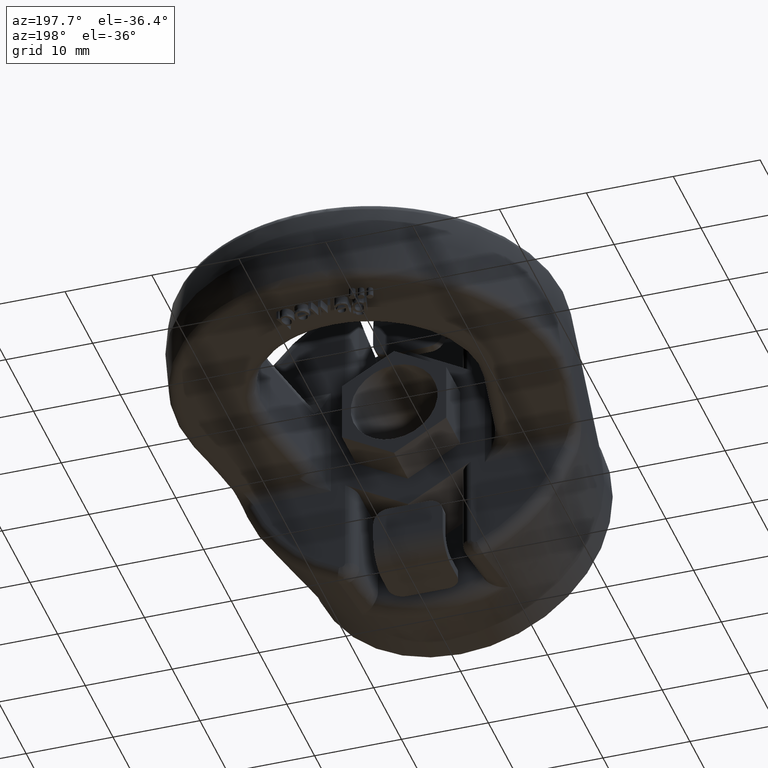
[diagram: clean part render]
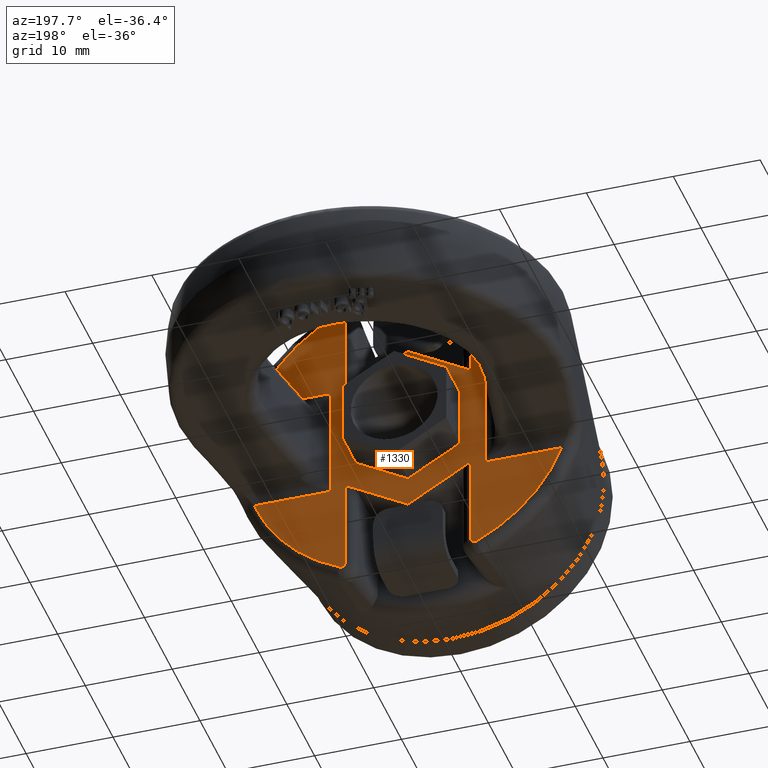
[diagram: same view with one face highlighted and labeled with its STEP entity id]
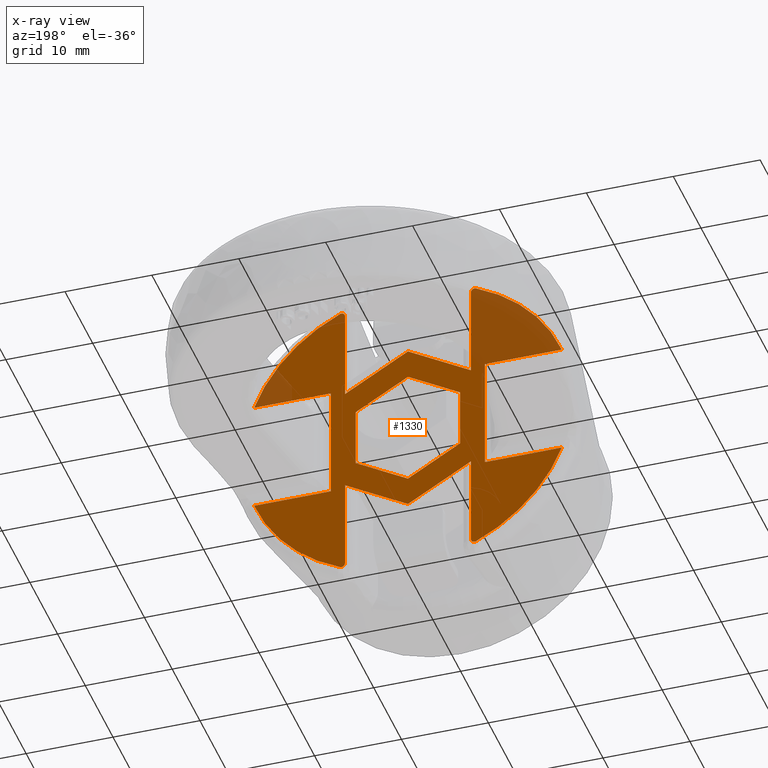
[diagram: x-ray of the same camera — body ghosted, the highlighted face saturated]
A machine part, auxiliary view. The second image highlights one B-rep face of the part: STEP entity #1330.
The next image is the same camera in x-ray: the body ghosted, the highlighted face saturated — about 19% of this face is hidden behind the body in this view.
In plain terms, the highlighted planar face has unit normal (0, 1, 0).
Its self-contained STEP definition (entity closure, byte-faithful):
#1330=ADVANCED_FACE('',(#1781,#1782),#1567,.T.);
#1567=PLANE('',#5133);
#1695=CIRCLE('',#5129,18.9143135849995);
#1696=CIRCLE('',#5130,18.9143135849995);
#1697=CIRCLE('',#5131,18.9143135849995);
#1698=CIRCLE('',#5132,18.9143135849995);
#1781=FACE_BOUND('',#1844,.T.);
#1782=FACE_BOUND('',#1845,.T.);
#1844=EDGE_LOOP('',(#2799,#2800,#2801,#2802,#2803,#2804,#2805,#2806,#2807,
#2808,#2809,#2810,#2811,#2812,#2813,#2814,#2815,#2816,#2817,#2818,#2819,
#2820));
#1845=EDGE_LOOP('',(#2821,#2822,#2823,#2824,#2825,#2826));
#2142=LINE('',#6736,#2412);
#2143=LINE('',#6739,#2413);
#2144=LINE('',#6763,#2414);
#2145=LINE('',#6765,#2415);
#2146=LINE('',#6767,#2416);
#2147=LINE('',#6769,#2417);
#2148=LINE('',#6793,#2418);
#2149=LINE('',#6795,#2419);
#2150=LINE('',#6797,#2420);
#2151=LINE('',#6821,#2421);
#2152=LINE('',#6823,#2422);
#2153=LINE('',#6825,#2423);
#2154=LINE('',#6827,#2424);
#2155=LINE('',#6851,#2425);
#2156=LINE('',#6852,#2426);
#2157=LINE('',#6855,#2427);
#2158=LINE('',#6857,#2428);
#2159=LINE('',#6859,#2429);
#2160=LINE('',#6861,#2430);
#2161=LINE('',#6863,#2431);
#2412=VECTOR('',#5471,1.);
#2413=VECTOR('',#5472,1.);
#2414=VECTOR('',#5475,1.);
#2415=VECTOR('',#5476,1.);
#2416=VECTOR('',#5477,1.);
#2417=VECTOR('',#5478,1.);
#2418=VECTOR('',#5481,1.);
#2419=VECTOR('',#5482,1.);
#2420=VECTOR('',#5483,1.);
#2421=VECTOR('',#5486,1.);
#2422=VECTOR('',#5487,1.);
#2423=VECTOR('',#5488,1.);
#2424=VECTOR('',#5489,1.);
#2425=VECTOR('',#5492,1.);
#2426=VECTOR('',#5493,1.);
#2427=VECTOR('',#5494,1.);
#2428=VECTOR('',#5495,1.);
#2429=VECTOR('',#5496,1.);
#2430=VECTOR('',#5497,1.);
#2431=VECTOR('',#5498,1.);
#2799=ORIENTED_EDGE('',*,*,#4351,.T.);
#2800=ORIENTED_EDGE('',*,*,#4352,.T.);
#2801=ORIENTED_EDGE('',*,*,#4353,.T.);
#2802=ORIENTED_EDGE('',*,*,#4354,.T.);
#2803=ORIENTED_EDGE('',*,*,#4355,.T.);
#2804=ORIENTED_EDGE('',*,*,#4356,.T.);
#2805=ORIENTED_EDGE('',*,*,#4357,.T.);
#2806=ORIENTED_EDGE('',*,*,#4358,.T.);
#2807=ORIENTED_EDGE('',*,*,#4359,.T.);
#2808=ORIENTED_EDGE('',*,*,#4360,.T.);
#2809=ORIENTED_EDGE('',*,*,#4361,.T.);
#2810=ORIENTED_EDGE('',*,*,#4362,.T.);
#2811=ORIENTED_EDGE('',*,*,#4363,.T.);
#2812=ORIENTED_EDGE('',*,*,#4364,.T.);
#2813=ORIENTED_EDGE('',*,*,#4365,.T.);
#2814=ORIENTED_EDGE('',*,*,#4366,.T.);
#2815=ORIENTED_EDGE('',*,*,#4367,.T.);
#2816=ORIENTED_EDGE('',*,*,#4368,.T.);
#2817=ORIENTED_EDGE('',*,*,#4369,.T.);
#2818=ORIENTED_EDGE('',*,*,#4370,.T.);
#2819=ORIENTED_EDGE('',*,*,#4371,.T.);
#2820=ORIENTED_EDGE('',*,*,#4372,.T.);
#2821=ORIENTED_EDGE('',*,*,#4373,.T.);
#2822=ORIENTED_EDGE('',*,*,#4374,.T.);
#2823=ORIENTED_EDGE('',*,*,#4375,.T.);
#2824=ORIENTED_EDGE('',*,*,#4376,.T.);
#2825=ORIENTED_EDGE('',*,*,#4377,.F.);
#2826=ORIENTED_EDGE('',*,*,#4378,.T.);
#3963=VERTEX_POINT('',#6737);
#3964=VERTEX_POINT('',#6738);
#3965=VERTEX_POINT('',#6740);
#3966=VERTEX_POINT('',#6742);
#3967=VERTEX_POINT('',#6762);
#3968=VERTEX_POINT('',#6764);
#3969=VERTEX_POINT('',#6766);
#3970=VERTEX_POINT('',#6768);
#3971=VERTEX_POINT('',#6770);
#3972=VERTEX_POINT('',#6790);
#3973=VERTEX_POINT('',#6792);
#3974=VERTEX_POINT('',#6794);
#3975=VERTEX_POINT('',#6796);
#3976=VERTEX_POINT('',#6798);
#3977=VERTEX_POINT('',#6800);
#3978=VERTEX_POINT('',#6820);
#3979=VERTEX_POINT('',#6822);
#3980=VERTEX_POINT('',#6824);
#3981=VERTEX_POINT('',#6826);
#3982=VERTEX_POINT('',#6828);
#3983=VERTEX_POINT('',#6848);
#3984=VERTEX_POINT('',#6850);
#3985=VERTEX_POINT('',#6853);
#3986=VERTEX_POINT('',#6854);
#3987=VERTEX_POINT('',#6856);
#3988=VERTEX_POINT('',#6858);
#3989=VERTEX_POINT('',#6860);
#3990=VERTEX_POINT('',#6862);
#4351=EDGE_CURVE('',#3963,#3964,#2142,.T.);
#4352=EDGE_CURVE('',#3964,#3965,#2143,.T.);
#4353=EDGE_CURVE('',#3965,#3966,#1695,.T.);
#4354=EDGE_CURVE('',#3966,#3967,#4878,.T.);
#4355=EDGE_CURVE('',#3967,#3968,#2144,.T.);
#4356=EDGE_CURVE('',#3968,#3969,#2145,.T.);
#4357=EDGE_CURVE('',#3969,#3970,#2146,.T.);
#4358=EDGE_CURVE('',#3970,#3971,#2147,.T.);
#4359=EDGE_CURVE('',#3971,#3972,#4879,.T.);
#4360=EDGE_CURVE('',#3972,#3973,#1696,.T.);
#4361=EDGE_CURVE('',#3973,#3974,#2148,.T.);
#4362=EDGE_CURVE('',#3974,#3975,#2149,.T.);
#4363=EDGE_CURVE('',#3975,#3976,#2150,.T.);
#4364=EDGE_CURVE('',#3976,#3977,#1697,.T.);
#4365=EDGE_CURVE('',#3977,#3978,#4880,.T.);
#4366=EDGE_CURVE('',#3978,#3979,#2151,.T.);
#4367=EDGE_CURVE('',#3979,#3980,#2152,.T.);
#4368=EDGE_CURVE('',#3980,#3981,#2153,.T.);
#4369=EDGE_CURVE('',#3981,#3982,#2154,.T.);
#4370=EDGE_CURVE('',#3982,#3983,#4881,.T.);
#4371=EDGE_CURVE('',#3983,#3984,#1698,.T.);
#4372=EDGE_CURVE('',#3984,#3963,#2155,.T.);
#4373=EDGE_CURVE('',#3985,#3986,#2156,.T.);
#4374=EDGE_CURVE('',#3986,#3987,#2157,.T.);
#4375=EDGE_CURVE('',#3987,#3988,#2158,.T.);
#4376=EDGE_CURVE('',#3988,#3989,#2159,.T.);
#4377=EDGE_CURVE('',#3990,#3989,#2160,.T.);
#4378=EDGE_CURVE('',#3990,#3985,#2161,.T.);
#4878=B_SPLINE_CURVE_WITH_KNOTS('',3,(#6743,#6744,#6745,#6746,#6747,#6748,
#6749,#6750,#6751,#6752,#6753,#6754,#6755,#6756,#6757,#6758,#6759,#6760,
#6761),.UNSPECIFIED.,.F.,.F.,(4,3,3,3,3,3,4),(0.,0.165318531740153,0.330675710174244,
0.495621195779136,0.66197846033907,0.831232942295172,1.),.UNSPECIFIED.);
#4879=B_SPLINE_CURVE_WITH_KNOTS('',3,(#6771,#6772,#6773,#6774,#6775,#6776,
#6777,#6778,#6779,#6780,#6781,#6782,#6783,#6784,#6785,#6786,#6787,#6788,
#6789),.UNSPECIFIED.,.F.,.F.,(4,3,3,3,3,3,4),(0.,0.17408732302447,0.348272609047639,
0.520853452692178,0.690148229877506,0.85645309122523,1.),.UNSPECIFIED.);
#4880=B_SPLINE_CURVE_WITH_KNOTS('',3,(#6801,#6802,#6803,#6804,#6805,#6806,
#6807,#6808,#6809,#6810,#6811,#6812,#6813,#6814,#6815,#6816,#6817,#6818,
#6819),.UNSPECIFIED.,.F.,.F.,(4,3,3,3,3,3,4),(0.,0.165318531740154,0.330675710174245,
0.495621195779136,0.66197846033907,0.831232942295172,1.),.UNSPECIFIED.);
#4881=B_SPLINE_CURVE_WITH_KNOTS('',3,(#6829,#6830,#6831,#6832,#6833,#6834,
#6835,#6836,#6837,#6838,#6839,#6840,#6841,#6842,#6843,#6844,#6845,#6846,
#6847),.UNSPECIFIED.,.F.,.F.,(4,3,3,3,3,3,4),(0.,0.174087323024471,0.34827260904764,
0.520853452692179,0.690148229877508,0.856453091225231,1.),.UNSPECIFIED.);
#5129=AXIS2_PLACEMENT_3D('',#6741,#5473,#5474);
#5130=AXIS2_PLACEMENT_3D('',#6791,#5479,#5480);
#5131=AXIS2_PLACEMENT_3D('',#6799,#5484,#5485);
#5132=AXIS2_PLACEMENT_3D('',#6849,#5490,#5491);
#5133=AXIS2_PLACEMENT_3D('',#6864,#5499,#5500);
#5471=DIRECTION('',(0.,0.,-1.));
#5472=DIRECTION('',(1.,0.,2.34291072916505E-15));
#5473=DIRECTION('',(0.,1.,0.));
#5474=DIRECTION('',(2.34291072916505E-15,0.,-1.));
#5475=DIRECTION('',(-2.34291072916505E-15,0.,1.));
#5476=DIRECTION('',(-0.866025403784439,0.,-0.5));
#5477=DIRECTION('',(-0.866025403784441,0.,0.499999999999996));
#5478=DIRECTION('',(2.34291072916505E-15,0.,-1.));
#5479=DIRECTION('',(0.,1.,0.));
#5480=DIRECTION('',(2.34291072916505E-15,0.,-1.));
#5481=DIRECTION('',(1.,0.,2.34291072916505E-15));
#5482=DIRECTION('',(0.,0.,1.));
#5483=DIRECTION('',(-1.,0.,0.));
#5484=DIRECTION('',(0.,1.,0.));
#5485=DIRECTION('',(0.,0.,1.));
#5486=DIRECTION('',(0.,0.,-1.));
#5487=DIRECTION('',(0.86602540378444,0.,0.499999999999998));
#5488=DIRECTION('',(0.86602540378444,0.,-0.499999999999998));
#5489=DIRECTION('',(0.,0.,1.));
#5490=DIRECTION('',(0.,1.,0.));
#5491=DIRECTION('',(0.,0.,1.));
#5492=DIRECTION('',(-1.,0.,0.));
#5493=DIRECTION('',(0.866025403784439,0.,0.5));
#5494=DIRECTION('',(0.,0.,1.));
#5495=DIRECTION('',(-0.86602540378444,0.,0.499999999999998));
#5496=DIRECTION('',(-0.86602540378444,0.,-0.499999999999998));
#5497=DIRECTION('',(0.,0.,1.));
#5498=DIRECTION('',(0.866025403784441,0.,-0.499999999999996));
#5499=DIRECTION('',(0.,1.,0.));
#5500=DIRECTION('',(0.,0.,1.));
#6736=CARTESIAN_POINT('',(8.85739002666655,19.,0.));
#6737=CARTESIAN_POINT('',(8.85739002666655,19.,6.66666666666668));
#6738=CARTESIAN_POINT('',(8.85739002666657,19.,-6.66666666666665));
#6739=CARTESIAN_POINT('',(10.2480690949999,19.,-6.66666666666665));
#6740=CARTESIAN_POINT('',(17.7004749638888,19.,-6.66666666666663));
#6741=CARTESIAN_POINT('',(1.26884964645017E-13,19.,-4.85731771179716E-14));
#6742=CARTESIAN_POINT('',(7.83650772366343,19.,-17.2145405134341));
#6743=CARTESIAN_POINT('',(7.83650772366343,19.,-17.2145405134341));
#6744=CARTESIAN_POINT('',(7.79477219350774,19.,-17.2335396150459));
#6745=CARTESIAN_POINT('',(7.74919712013925,19.,-17.2456411993587));
#6746=CARTESIAN_POINT('',(7.70352754335138,19.,-17.2497776344726));
#6747=CARTESIAN_POINT('',(7.65785054535868,19.,-17.253914741748));
#6748=CARTESIAN_POINT('',(7.61082621339502,19.,-17.2501941739185));
#6749=CARTESIAN_POINT('',(7.56636250656986,19.,-17.2389477265861));
#6750=CARTESIAN_POINT('',(7.52199888812297,19.,-17.2277265951519));
#6751=CARTESIAN_POINT('',(7.47897499068707,19.,-17.2087174470566));
#6752=CARTESIAN_POINT('',(7.440748750327,19.,-17.1835619510309));
#6753=CARTESIAN_POINT('',(7.40219198256359,19.,-17.1581889452343));
#6754=CARTESIAN_POINT('',(7.36747135381161,19.,-17.1258901141901));
#6755=CARTESIAN_POINT('',(7.33926811913787,19.,-17.0893525811939));
#6756=CARTESIAN_POINT('',(7.31057750600835,19.,-17.0521836452179));
#6757=CARTESIAN_POINT('',(7.28785243368899,19.,-17.0096346174439));
#6758=CARTESIAN_POINT('',(7.27279991624554,19.,-16.9651587498083));
#6759=CARTESIAN_POINT('',(7.25778645460377,19.,-16.9207982808541));
#6760=CARTESIAN_POINT('',(7.25000000000004,19.,-16.8733566823321));
#6761=CARTESIAN_POINT('',(7.25000000000004,19.,-16.8265244793485));
#6762=CARTESIAN_POINT('',(7.25000000000004,19.,-16.8265244793485));
#6763=CARTESIAN_POINT('',(7.25000000000006,19.,-24.75));
#6764=CARTESIAN_POINT('',(7.25000000000002,19.,-6.20651539378845));
#6765=CARTESIAN_POINT('',(4.49999999999999,19.,-7.79422863405994));
#6766=CARTESIAN_POINT('',(2.39972207607391E-14,19.,-10.3923048454132));
#6767=CARTESIAN_POINT('',(-4.49999999999996,19.,-7.79422863405996));
#6768=CARTESIAN_POINT('',(-7.24999999999998,19.,-6.20651539378849));
#6769=CARTESIAN_POINT('',(-7.24999999999994,19.,-24.75));
#6770=CARTESIAN_POINT('',(-7.24999999999996,19.,-16.8265244793485));
#6771=CARTESIAN_POINT('',(-7.24999999999996,19.,-16.8265244793485));
#6772=CARTESIAN_POINT('',(-7.24999999999996,19.,-16.8747952541584));
#6773=CARTESIAN_POINT('',(-7.25828526367033,19.,-16.923732893087));
#6774=CARTESIAN_POINT('',(-7.27422374129343,19.,-16.9692963941795));
#6775=CARTESIAN_POINT('',(-7.29016720373583,19.,-17.0148741454298));
#6776=CARTESIAN_POINT('',(-7.31422558917186,19.,-17.058345069851));
#6777=CARTESIAN_POINT('',(-7.3444847967835,19.,-17.0959735930535));
#6778=CARTESIAN_POINT('',(-7.37446210057362,19.,-17.1332515576879));
#6779=CARTESIAN_POINT('',(-7.41138550240874,19.,-17.1658411937511));
#6780=CARTESIAN_POINT('',(-7.45218119056702,19.,-17.1908211300501));
#6781=CARTESIAN_POINT('',(-7.49220893304693,19.,-17.2153308393474));
#6782=CARTESIAN_POINT('',(-7.53709977706994,19.,-17.2331995185039));
#6783=CARTESIAN_POINT('',(-7.58304336427604,19.,-17.2427981023844));
#6784=CARTESIAN_POINT('',(-7.6281920428911,19.,-17.2522306131032));
#6785=CARTESIAN_POINT('',(-7.67561519681454,19.,-17.2539399442254));
#6786=CARTESIAN_POINT('',(-7.72132438565704,19.,-17.2477718412344));
#6787=CARTESIAN_POINT('',(-7.76092588042244,19.,-17.2424279245188));
#6788=CARTESIAN_POINT('',(-7.80013842008866,19.,-17.2310967687778));
#6789=CARTESIAN_POINT('',(-7.83650772366333,19.,-17.214540513434));
#6790=CARTESIAN_POINT('',(-7.83650772366333,19.,-17.214540513434));
#6791=CARTESIAN_POINT('',(1.26884964645017E-13,19.,-4.85731771179716E-14));
#6792=CARTESIAN_POINT('',(-17.7004749638886,19.,-6.66666666666672));
#6793=CARTESIAN_POINT('',(10.2480690949999,19.,-6.66666666666665));
#6794=CARTESIAN_POINT('',(-8.85739002666654,19.,-6.6666666666667));
#6795=CARTESIAN_POINT('',(-8.85739002666655,19.,5.00000000000001));
#6796=CARTESIAN_POINT('',(-8.85739002666655,19.,6.66666666666668));
#6797=CARTESIAN_POINT('',(-10.2480690949999,19.,6.66666666666668));
#6798=CARTESIAN_POINT('',(-17.7004749638888,19.,6.66666666666668));
#6799=CARTESIAN_POINT('',(-1.26884964645017E-13,19.,4.85731771179719E-14));
#6800=CARTESIAN_POINT('',(-7.83650772366339,19.,17.2145405134341));
#6801=CARTESIAN_POINT('',(-7.83650772366339,19.,17.2145405134341));
#6802=CARTESIAN_POINT('',(-7.7947721935077,19.,17.2335396150459));
#6803=CARTESIAN_POINT('',(-7.7491971201392,19.,17.2456411993587));
#6804=CARTESIAN_POINT('',(-7.70352754335134,19.,17.2497776344726));
#6805=CARTESIAN_POINT('',(-7.65785054535864,19.,17.253914741748));
#6806=CARTESIAN_POINT('',(-7.61082621339498,19.,17.2501941739185));
#6807=CARTESIAN_POINT('',(-7.56636250656982,19.,17.2389477265861));
#6808=CARTESIAN_POINT('',(-7.52199888812293,19.,17.2277265951519));
#6809=CARTESIAN_POINT('',(-7.47897499068703,19.,17.2087174470567));
#6810=CARTESIAN_POINT('',(-7.44074875032696,19.,17.1835619510309));
#6811=CARTESIAN_POINT('',(-7.40219198256355,19.,17.1581889452344));
#6812=CARTESIAN_POINT('',(-7.36747135381157,19.,17.1258901141902));
#6813=CARTESIAN_POINT('',(-7.33926811913783,19.,17.0893525811939));
#6814=CARTESIAN_POINT('',(-7.31057750600831,19.,17.052183645218));
#6815=CARTESIAN_POINT('',(-7.28785243368895,19.,17.0096346174439));
#6816=CARTESIAN_POINT('',(-7.2727999162455,19.,16.9651587498083));
#6817=CARTESIAN_POINT('',(-7.25778645460373,19.,16.9207982808541));
#6818=CARTESIAN_POINT('',(-7.25,19.,16.8733566823322));
#6819=CARTESIAN_POINT('',(-7.25,19.,16.8265244793485));
#6820=CARTESIAN_POINT('',(-7.25,19.,16.8265244793485));
#6821=CARTESIAN_POINT('',(-7.25,19.,24.75));
#6822=CARTESIAN_POINT('',(-7.25,19.,6.20651539378847));
#6823=CARTESIAN_POINT('',(-4.49999999999998,19.,7.79422863405995));
#6824=CARTESIAN_POINT('',(3.5102176233347E-16,19.,10.3923048454132));
#6825=CARTESIAN_POINT('',(4.49999999999998,19.,7.79422863405995));
#6826=CARTESIAN_POINT('',(7.25,19.,6.20651539378847));
#6827=CARTESIAN_POINT('',(7.25,19.,24.75));
#6828=CARTESIAN_POINT('',(7.25,19.,16.8265244793484));
#6829=CARTESIAN_POINT('',(7.25,19.,16.8265244793484));
#6830=CARTESIAN_POINT('',(7.25,19.,16.8747952541584));
#6831=CARTESIAN_POINT('',(7.25828526367036,19.,16.923732893087));
#6832=CARTESIAN_POINT('',(7.27422374129347,19.,16.9692963941795));
#6833=CARTESIAN_POINT('',(7.29016720373587,19.,17.0148741454298));
#6834=CARTESIAN_POINT('',(7.3142255891719,19.,17.058345069851));
#6835=CARTESIAN_POINT('',(7.34448479678354,19.,17.0959735930535));
#6836=CARTESIAN_POINT('',(7.37446210057366,19.,17.1332515576879));
#6837=CARTESIAN_POINT('',(7.41138550240878,19.,17.1658411937511));
#6838=CARTESIAN_POINT('',(7.45218119056706,19.,17.1908211300501));
#6839=CARTESIAN_POINT('',(7.49220893304697,19.,17.2153308393474));
#6840=CARTESIAN_POINT('',(7.53709977706998,19.,17.2331995185039));
#6841=CARTESIAN_POINT('',(7.58304336427608,19.,17.2427981023844));
#6842=CARTESIAN_POINT('',(7.62819204289114,19.,17.2522306131032));
#6843=CARTESIAN_POINT('',(7.67561519681458,19.,17.2539399442254));
#6844=CARTESIAN_POINT('',(7.72132438565708,19.,17.2477718412344));
#6845=CARTESIAN_POINT('',(7.76092588042248,19.,17.2424279245188));
#6846=CARTESIAN_POINT('',(7.8001384200887,19.,17.2310967687778));
#6847=CARTESIAN_POINT('',(7.83650772366337,19.,17.214540513434));
#6848=CARTESIAN_POINT('',(7.83650772366337,19.,17.214540513434));
#6849=CARTESIAN_POINT('',(-1.26884964645017E-13,19.,4.85731771179719E-14));
#6850=CARTESIAN_POINT('',(17.7004749638886,19.,6.66666666666668));
#6851=CARTESIAN_POINT('',(-10.2480690949999,19.,6.66666666666668));
#6852=CARTESIAN_POINT('',(6.00000000000001,19.,-3.46410161513774));
#6853=CARTESIAN_POINT('',(1.70995239417387E-14,19.,-6.92820323027549));
#6854=CARTESIAN_POINT('',(6.00000000000001,19.,-3.46410161513774));
#6855=CARTESIAN_POINT('',(6.,19.,24.75));
#6856=CARTESIAN_POINT('',(6.,19.,3.46410161513775));
#6857=CARTESIAN_POINT('',(0.,19.,6.92820323027549));
#6858=CARTESIAN_POINT('',(-8.67362259690363E-16,19.,6.92820323027549));
#6859=CARTESIAN_POINT('',(-6.,19.,3.46410161513775));
#6860=CARTESIAN_POINT('',(-6.,19.,3.46410161513775));
#6861=CARTESIAN_POINT('',(-6.,19.,24.75));
#6862=CARTESIAN_POINT('',(-5.99999999999999,19.,-3.46410161513776));
#6863=CARTESIAN_POINT('',(1.62321616820484E-14,19.,-6.92820323027549));
#6864=CARTESIAN_POINT('',(-10.2480690949999,19.,24.75));